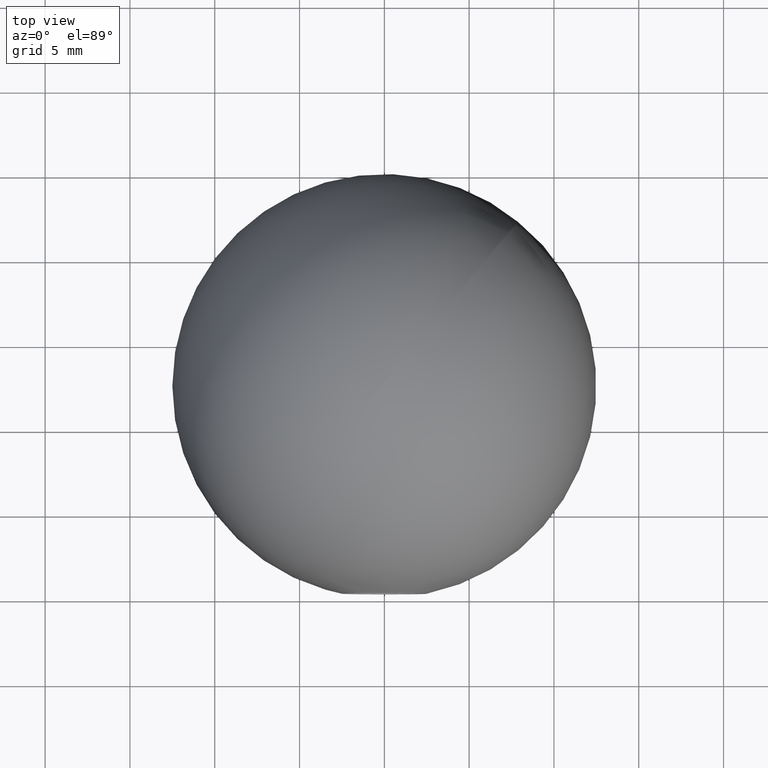
[diagram: clean part render]
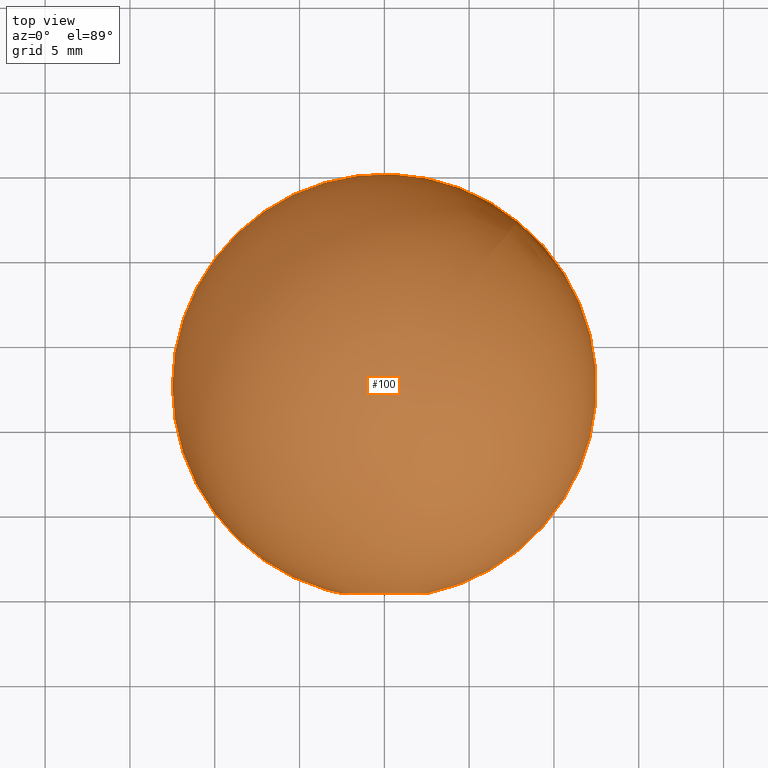
[diagram: same view with one face highlighted and labeled with its STEP entity id]
A machine part, top view. The second image highlights one B-rep face of the part: STEP entity #100.
In plain terms, the highlighted spherical surface has radius 12.5 mm.
Its self-contained STEP definition (entity closure, byte-faithful):
#1 = ORIENTED_EDGE ( 'NONE', *, *, #101, .F. ) ;
#11 = DIRECTION ( 'NONE',  ( -0.000000000000000000, -1.000000000000000000, -0.000000000000000000 ) ) ;
#27 = EDGE_LOOP ( 'NONE', ( #1 ) ) ;
#48 = VERTEX_POINT ( 'NONE', #127 ) ;
#52 = CARTESIAN_POINT ( 'NONE',  ( 0.000000000000000000, 0.2525512860841062079, 0.000000000000000000 ) ) ;
#70 = AXIS2_PLACEMENT_3D ( 'NONE', #52, #11, #77 ) ;
#76 = DIRECTION ( 'NONE',  ( -1.000000000000000000, -1.387778780781445676E-16, 0.000000000000000000 ) ) ;
#77 = DIRECTION ( 'NONE',  ( 0.000000000000000000, 0.000000000000000000, 1.000000000000000000 ) ) ;
#84 = CARTESIAN_POINT ( 'NONE',  ( -6.933347799794072061E-32, 12.50000000000000000, 0.000000000000000000 ) ) ;
#95 = DIRECTION ( 'NONE',  ( -0.000000000000000000, 0.000000000000000000, -1.000000000000000000 ) ) ;
#100 = ADVANCED_FACE ( 'NONE', ( #115 ), #126, .T. ) ;
#101 = EDGE_CURVE ( 'NONE', #48, #48, #119, .T. ) ;
#115 = FACE_OUTER_BOUND ( 'NONE', #27, .T. ) ;
#119 = CIRCLE ( 'NONE', #70, 2.499999999999988454 ) ;
#122 = AXIS2_PLACEMENT_3D ( 'NONE', #84, #95, #76 ) ;
#126 = SPHERICAL_SURFACE ( 'NONE', #122, 12.50000000000000000 ) ;
#127 = CARTESIAN_POINT ( 'NONE',  ( 0.000000000000000000, 0.2525512860841062079, 2.499999999999988454 ) ) ;